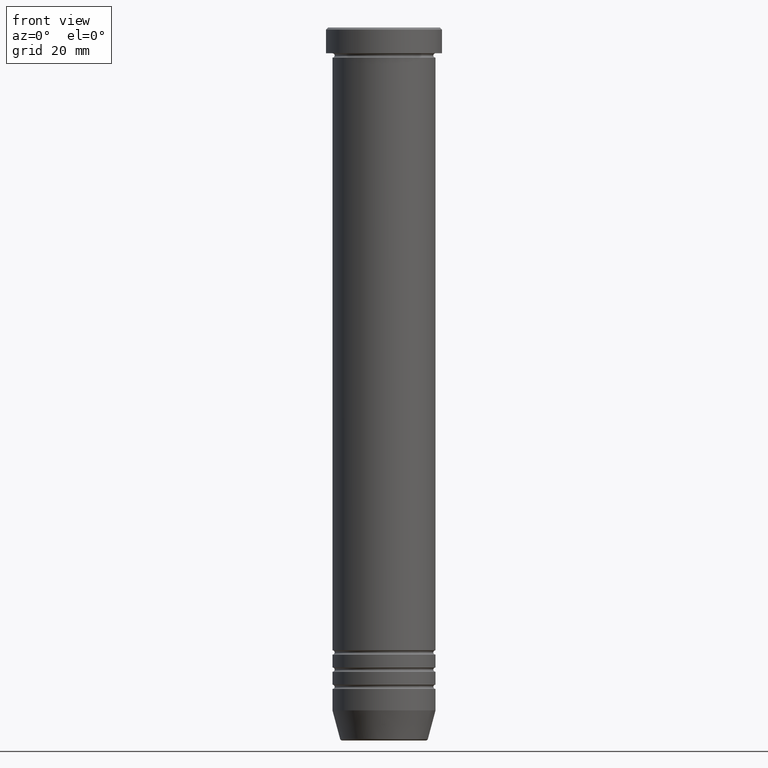
[diagram: clean part render]
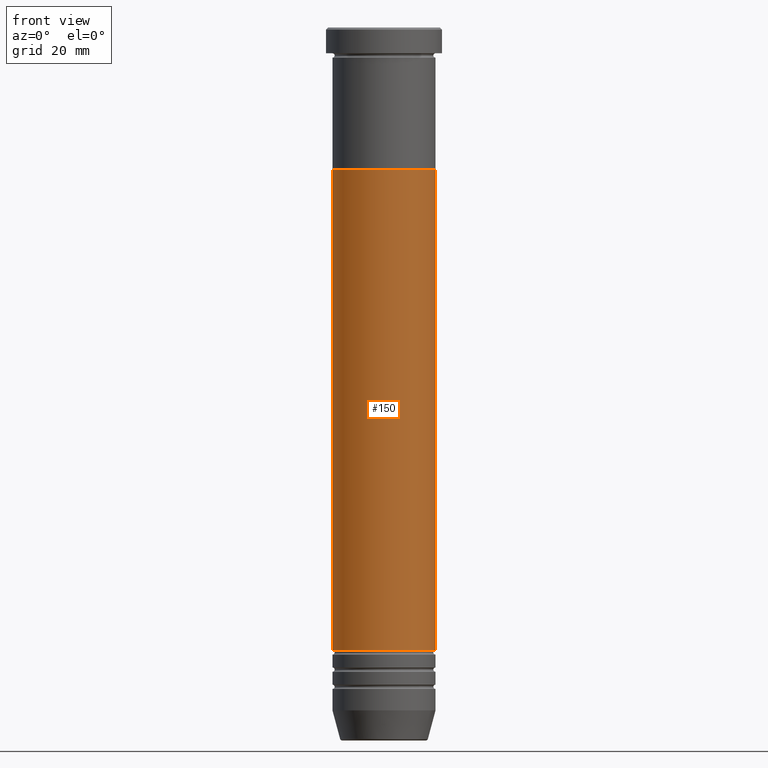
[diagram: same view with one face highlighted and labeled with its STEP entity id]
A machine part, front view. The second image highlights one B-rep face of the part: STEP entity #150.
In plain terms, the highlighted cylindrical surface (partial cylindrical patch) has radius 12 mm, axis along (-0, -0, 1).
Its self-contained STEP definition (entity closure, byte-faithful):
#5 = EDGE_CURVE ( 'NONE', #948, #627, #1069, .T. ) ;
#88 = CARTESIAN_POINT ( 'NONE',  ( 0.000000000000000000, 0.000000000000000000, -145.0000000000000284 ) ) ;
#107 = VECTOR ( 'NONE', #643, 1000.000000000000000 ) ;
#110 = ORIENTED_EDGE ( 'NONE', *, *, #182, .F. ) ;
#147 = CARTESIAN_POINT ( 'NONE',  ( 0.000000000000000000, 0.000000000000000000, 0.000000000000000000 ) ) ;
#150 = ADVANCED_FACE ( 'NONE', ( #622 ), #599, .T. ) ;
#182 = EDGE_CURVE ( 'NONE', #924, #1149, #631, .T. ) ;
#196 = DIRECTION ( 'NONE',  ( -0.000000000000000000, -0.000000000000000000, 1.000000000000000000 ) ) ;
#198 = CARTESIAN_POINT ( 'NONE',  ( -11.99999999999999822, 1.469576158976823750E-15, 0.000000000000000000 ) ) ;
#268 = CARTESIAN_POINT ( 'NONE',  ( 12.00000000000000178, 0.000000000000000000, -33.00000000000000000 ) ) ;
#304 = CARTESIAN_POINT ( 'NONE',  ( 11.99999999999999822, 0.000000000000000000, 0.000000000000000000 ) ) ;
#334 = ORIENTED_EDGE ( 'NONE', *, *, #686, .T. ) ;
#386 = AXIS2_PLACEMENT_3D ( 'NONE', #1020, #432, #535 ) ;
#402 = VECTOR ( 'NONE', #565, 1000.000000000000000 ) ;
#416 = EDGE_CURVE ( 'NONE', #1149, #627, #813, .T. ) ;
#432 = DIRECTION ( 'NONE',  ( -0.000000000000000000, -0.000000000000000000, 1.000000000000000000 ) ) ;
#468 = AXIS2_PLACEMENT_3D ( 'NONE', #147, #856, #765 ) ;
#510 = EDGE_LOOP ( 'NONE', ( #110, #334, #1047, #942 ) ) ;
#535 = DIRECTION ( 'NONE',  ( 1.000000000000000000, 0.000000000000000000, 0.000000000000000000 ) ) ;
#565 = DIRECTION ( 'NONE',  ( -0.000000000000000000, -0.000000000000000000, 1.000000000000000000 ) ) ;
#599 = CYLINDRICAL_SURFACE ( 'NONE', #468, 11.99999999999999822 ) ;
#622 = FACE_OUTER_BOUND ( 'NONE', #510, .T. ) ;
#627 = VERTEX_POINT ( 'NONE', #268 ) ;
#631 = LINE ( 'NONE', #198, #402 ) ;
#643 = DIRECTION ( 'NONE',  ( -0.000000000000000000, -0.000000000000000000, 1.000000000000000000 ) ) ;
#686 = EDGE_CURVE ( 'NONE', #924, #948, #981, .T. ) ;
#765 = DIRECTION ( 'NONE',  ( 1.000000000000000000, 0.000000000000000000, 0.000000000000000000 ) ) ;
#767 = CARTESIAN_POINT ( 'NONE',  ( 11.99999999999999467, 0.000000000000000000, -145.0000000000000284 ) ) ;
#780 = AXIS2_PLACEMENT_3D ( 'NONE', #88, #196, #892 ) ;
#813 = CIRCLE ( 'NONE', #386, 12.00000000000000178 ) ;
#856 = DIRECTION ( 'NONE',  ( -0.000000000000000000, -0.000000000000000000, 1.000000000000000000 ) ) ;
#862 = CARTESIAN_POINT ( 'NONE',  ( -11.99999999999999467, 1.469576158976823553E-15, -145.0000000000000284 ) ) ;
#892 = DIRECTION ( 'NONE',  ( 1.000000000000000000, 0.000000000000000000, 0.000000000000000000 ) ) ;
#924 = VERTEX_POINT ( 'NONE', #862 ) ;
#942 = ORIENTED_EDGE ( 'NONE', *, *, #416, .F. ) ;
#948 = VERTEX_POINT ( 'NONE', #767 ) ;
#981 = CIRCLE ( 'NONE', #780, 11.99999999999999467 ) ;
#1020 = CARTESIAN_POINT ( 'NONE',  ( 0.000000000000000000, 0.000000000000000000, -33.00000000000000000 ) ) ;
#1047 = ORIENTED_EDGE ( 'NONE', *, *, #5, .T. ) ;
#1069 = LINE ( 'NONE', #304, #107 ) ;
#1089 = CARTESIAN_POINT ( 'NONE',  ( -12.00000000000000178, 1.469576158976824144E-15, -33.00000000000000000 ) ) ;
#1149 = VERTEX_POINT ( 'NONE', #1089 ) ;